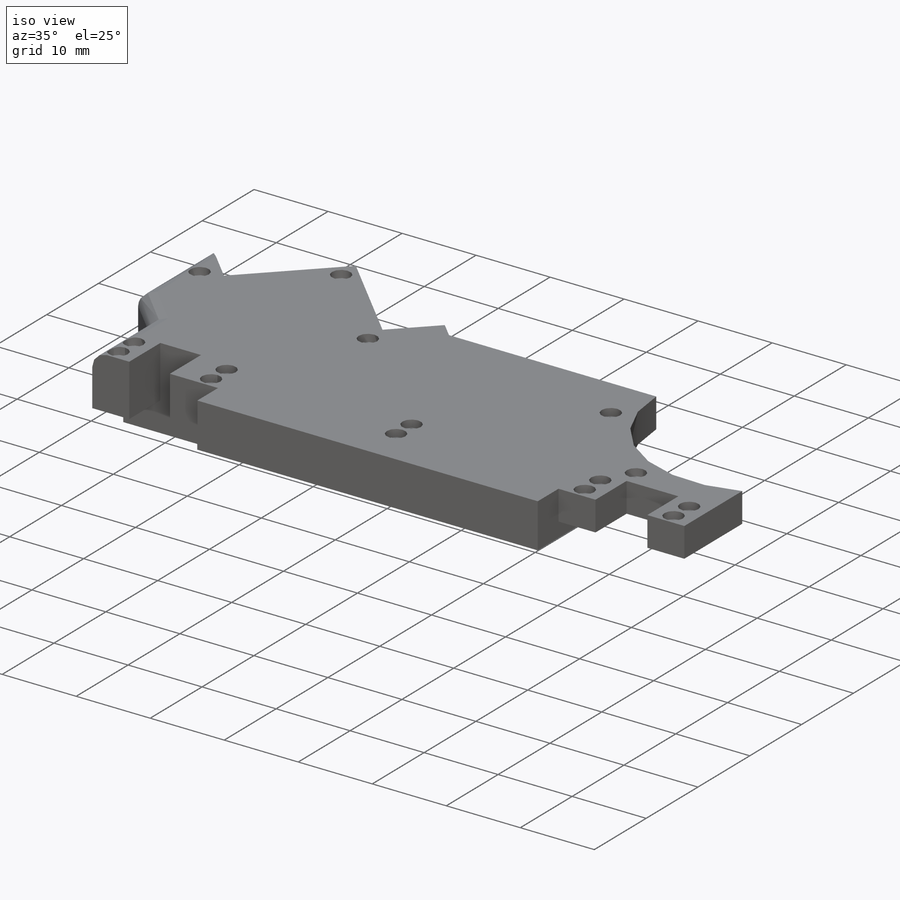
[diagram: iso view]
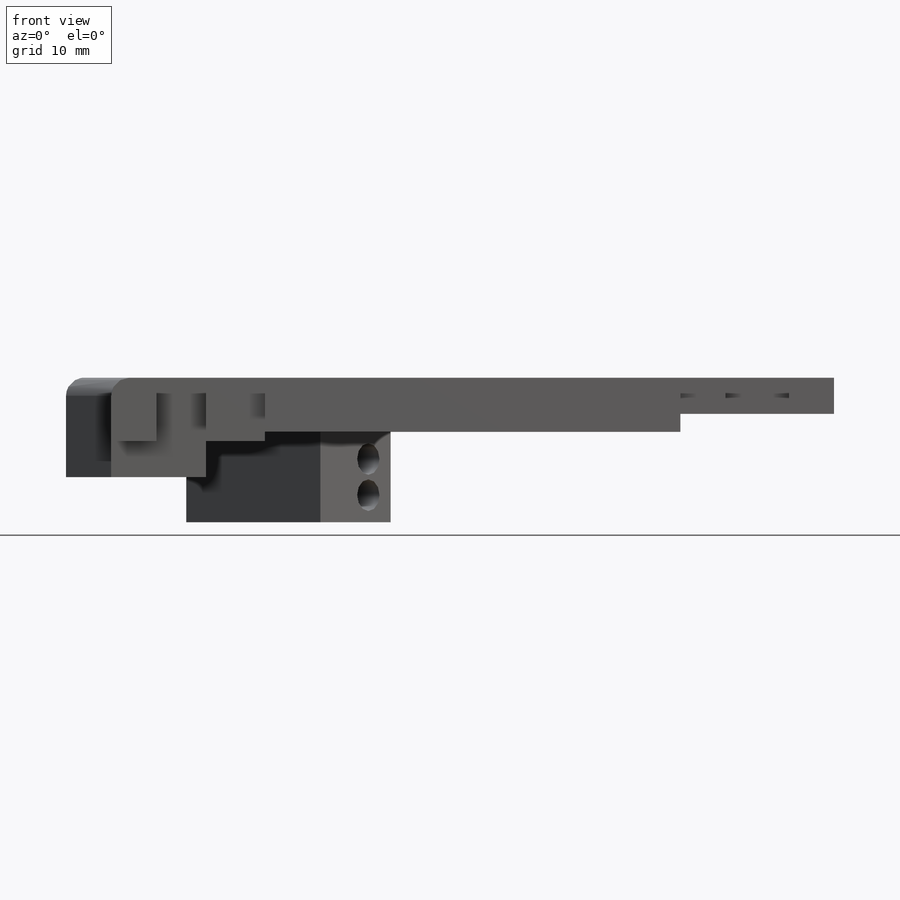
[diagram: front view]
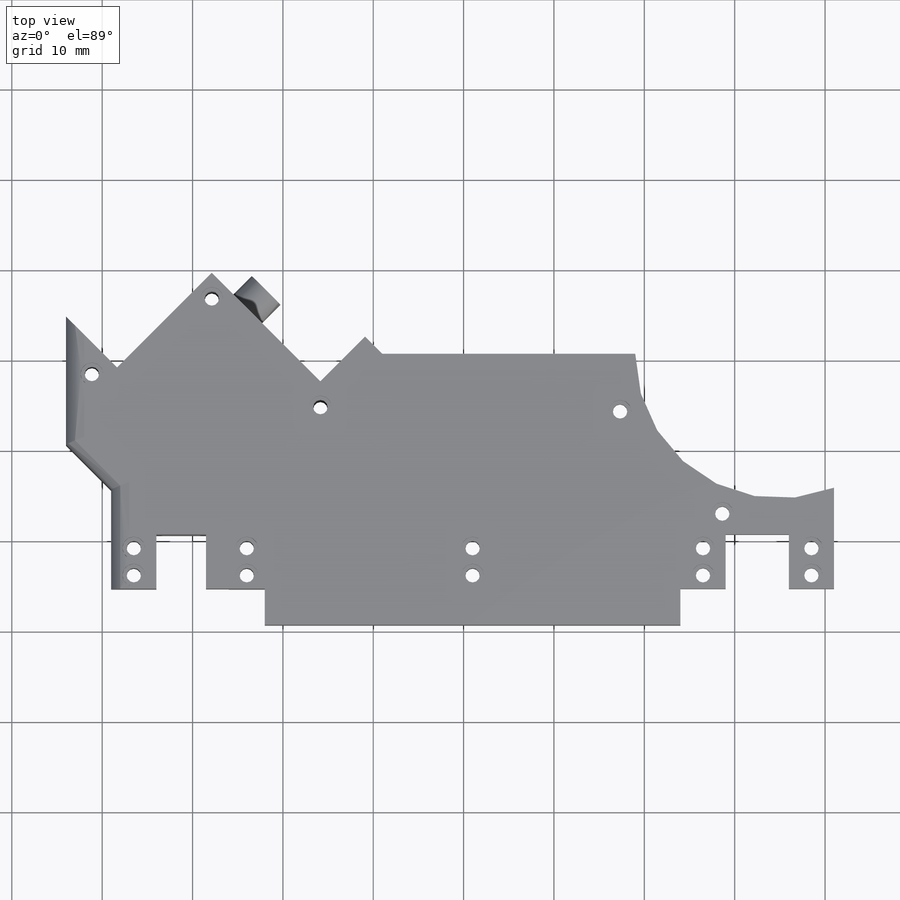
[diagram: top view]
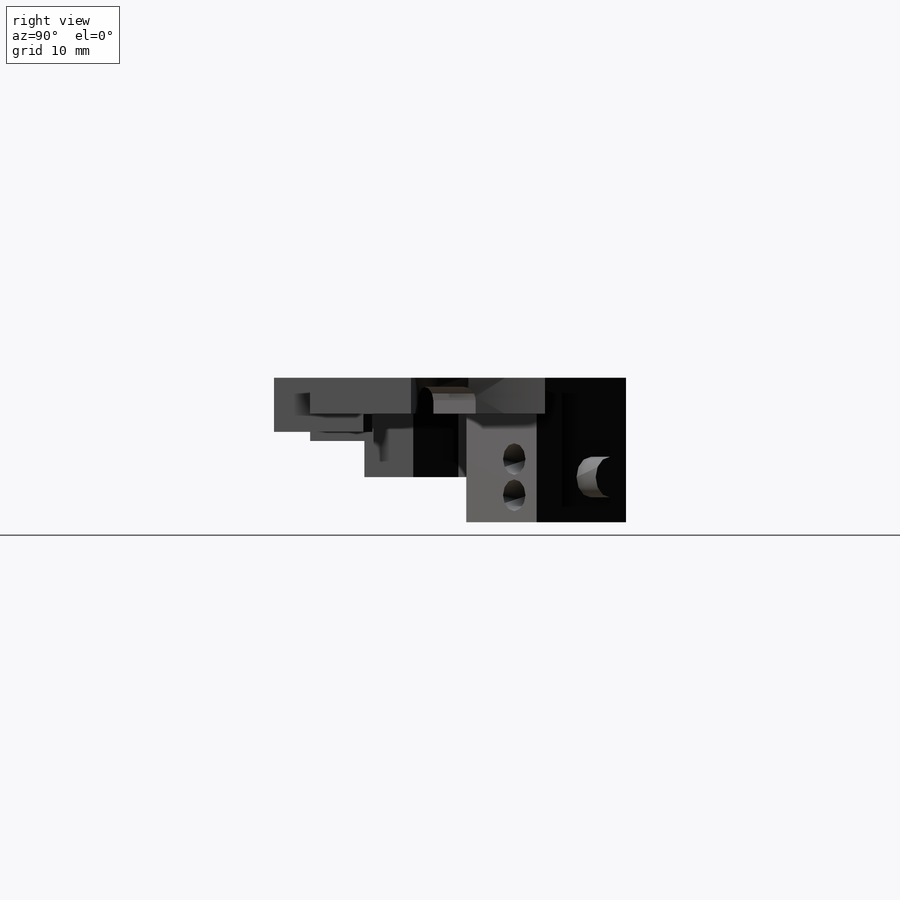
[diagram: right view]
SOLIDWORKS PART (.sldprt)
format: sldprt  version: not decoded by parser v0  size: 716,288 bytes
history: native  units: mm
features: sketch x14, cut_extrude x9, extrude x5, material x1, fillet x1 (+16 scaffold rows collapsed; 3 parser-record rows omitted)
feature tree (49):
  scaffold x16  (default folders/planes/origin — collapsed)
  material  "Material <not specified>"
  parser-record x3  (decoder bookkeeping rows leaked as tree rows — omitted from the tree; the rows remain in map.json)
  sketch  "Sketch1"  dims[c1.D1=~4.226816mm c1.D2=~1.334523mm c2.D1=5.0mm]
  extrude  "Boss-Extrude1"  Depth=11mm
  sketch  "Sketch3"  dims[D1=24.0mm]
  extrude  "Boss-Extrude2"  Depth=1mm
  sketch  "Sketch5"  dims[D1=6.0mm]
  extrude  "Boss-Extrude3"  Depth=7mm
  sketch  "Sketch9"  dims[D1=5.5mm]
  extrude  "Boss-Extrude4"  Depth=3mm
  sketch  "Sketch11"  dims[D1=11.0mm]
  extrude  "Boss-Extrude5"  Depth=5mm
  sketch  "Sketch7"  dims[D1=6.0mm]
  cut_extrude  "Tube Holes"  Depth=4mm
  sketch  "Sketch8"  dims[c1.D1=~8.171573mm c1.D2=46.0mm c2.D1=~11.112698mm]
  cut_extrude  "Palm Tube Opening"  Depth=10mm
  sketch  "Sketch12"  dims[c1.D1=10.0mm c1.D2=~20.177788mm c2.D1=11.0mm c2.D2=20.5mm c3.D1=3.0mm c3.D2=20.5mm c4.D1=11.0mm c4.D2=46.0mm c5.D1=~1.570697mm]
  cut_extrude  "Wrist Tube Opening"  Depth=5mm
  sketch  "Sketch13"  dims[c1.D1=6.0mm c1.D2=5.0mm c2.D1=6.0mm c2.D2=5.0mm c3.D1=~9.994342mm c3.D2=~4.994342mm c4.D1=10.0mm c4.D2=5.0mm c5.D1=6.0mm c5.D2=5.0mm c6.D1=7.0mm c6.D2=6.5mm]
  cut_extrude  "Cut-Extrude1"  Depth=4mm
  fillet  "Fillet1"  Radius=2mm
  sketch  "Sketch14"  dims[D1=11.0mm]
  cut_extrude  "Pot Insert"  Depth=2.5mm
  sketch  "Sketch6"  dims[D1=~10.647105mm]
  cut_extrude  "Screw Holes"  Depth=12mm
  sketch  "Sketch10"  dims[D1=2.5mm]
  cut_extrude  "Screw Heads"  Depth=2mm
  sketch  "Sketch15"  dims[D1=5.0mm]
  cut_extrude  "Cut-Extrude2"  Depth=7mm
  sketch  "Sketch19"  dims[D1=~4.089715mm]
  cut_extrude  "Cut-Extrude4"  Depth=7mm
decode coverage: 29 of 29 modeling features carry decoded parameters
note: ~ marks probable driven/reference dimensions
note: suppression state not decoded; provenance and decode notes live in map.json
